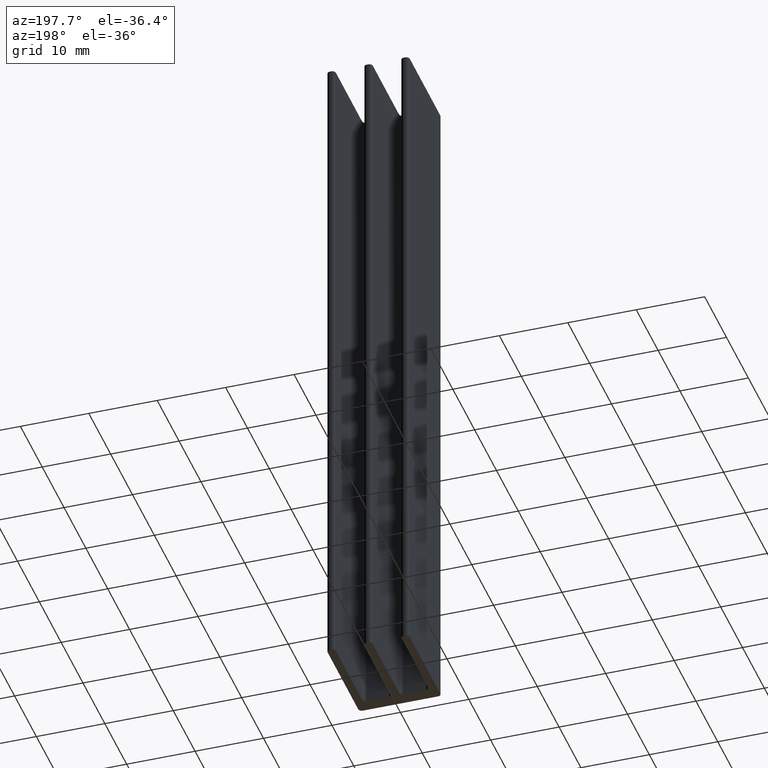
[diagram: clean part render]
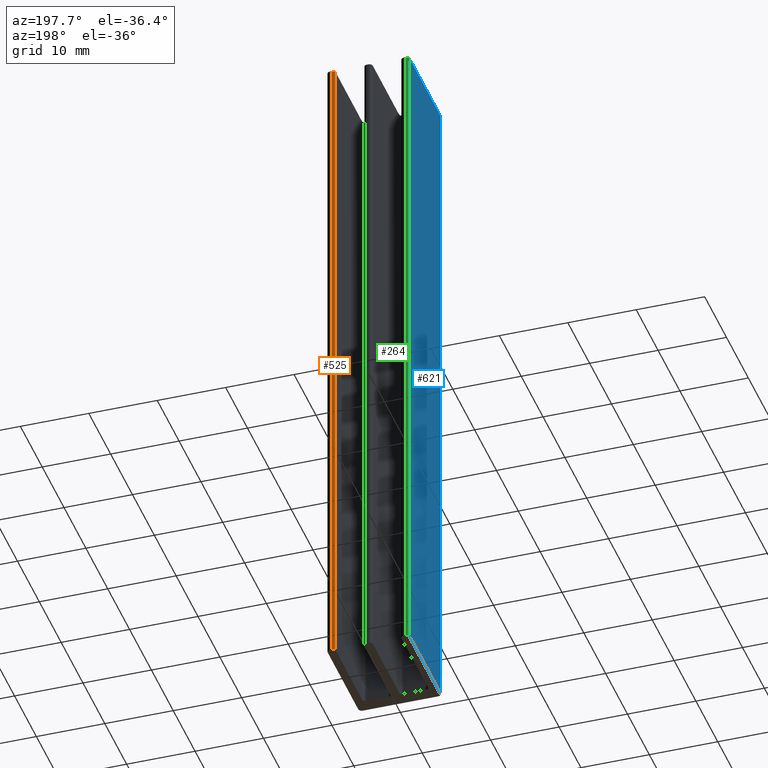
[diagram: same view with three faces highlighted in distinct colors, each labeled with its STEP entity id]
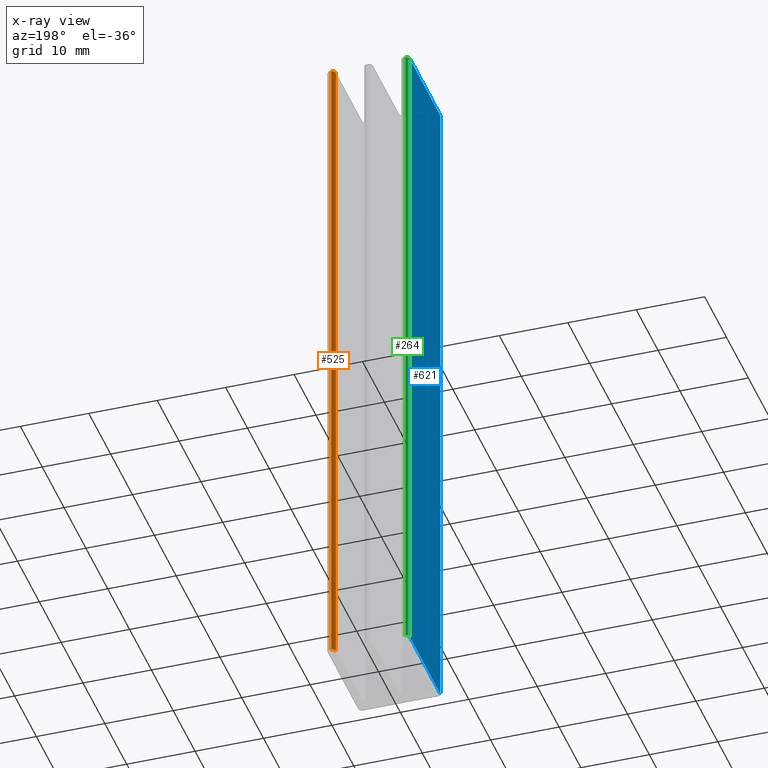
[diagram: x-ray of the same camera — body ghosted, the three highlighted faces saturated]
A machine part, auxiliary view with three faces highlighted in distinct colors.
The next image is the same camera in x-ray (body ghosted, the three faces saturated) — at least one of them is partly hidden behind the body in this view.
Their STEP definitions:

[orange] entity #525 — the highlighted cylindrical surface (edge-blend (fillet) strip) has radius 0.5 mm, axis along (-0, -0, -1).
#14 = DIRECTION ( 'NONE',  ( -0.000000000000000000, -0.000000000000000000, -1.000000000000000000 ) ) ;
#17 = VERTEX_POINT ( 'NONE', #742 ) ;
#31 = CARTESIAN_POINT ( 'NONE',  ( 5.300000000000002487, 15.00000000000000000, 0.000000000000000000 ) ) ;
#71 = DIRECTION ( 'NONE',  ( 1.000000000000000000, 0.000000000000000000, 0.000000000000000000 ) ) ;
#101 = EDGE_CURVE ( 'NONE', #541, #627, #772, .T. ) ;
#119 = CARTESIAN_POINT ( 'NONE',  ( 4.800000000000002487, 14.49999999999999822, 100.0000000000000000 ) ) ;
#121 = DIRECTION ( 'NONE',  ( 0.000000000000000000, 0.000000000000000000, 1.000000000000000000 ) ) ;
#160 = ORIENTED_EDGE ( 'NONE', *, *, #101, .T. ) ;
#176 = DIRECTION ( 'NONE',  ( -1.000000000000000000, 0.000000000000000000, 0.000000000000000000 ) ) ;
#186 = CARTESIAN_POINT ( 'NONE',  ( 5.300000000000002487, 14.49999999999999822, 0.000000000000000000 ) ) ;
#233 = AXIS2_PLACEMENT_3D ( 'NONE', #827, #121, #71 ) ;
#270 = CIRCLE ( 'NONE', #233, 0.5000000000000004441 ) ;
#291 = EDGE_CURVE ( 'NONE', #700, #627, #677, .T. ) ;
#294 = ORIENTED_EDGE ( 'NONE', *, *, #886, .T. ) ;
#322 = DIRECTION ( 'NONE',  ( -0.000000000000000000, -0.000000000000000000, -1.000000000000000000 ) ) ;
#385 = CARTESIAN_POINT ( 'NONE',  ( 4.800000000000002487, 14.49999999999999822, 0.000000000000000000 ) ) ;
#399 = DIRECTION ( 'NONE',  ( -0.000000000000000000, -0.000000000000000000, -1.000000000000000000 ) ) ;
#403 = DIRECTION ( 'NONE',  ( 1.000000000000000000, 0.000000000000000000, 0.000000000000000000 ) ) ;
#464 = VECTOR ( 'NONE', #14, 1000.000000000000000 ) ;
#484 = ORIENTED_EDGE ( 'NONE', *, *, #291, .F. ) ;
#487 = LINE ( 'NONE', #770, #464 ) ;
#525 = ADVANCED_FACE ( 'NONE', ( #847 ), #647, .T. ) ;
#532 = CARTESIAN_POINT ( 'NONE',  ( 5.300000000000002487, 14.49999999999999822, 100.0000000000000000 ) ) ;
#541 = VERTEX_POINT ( 'NONE', #31 ) ;
#597 = CARTESIAN_POINT ( 'NONE',  ( 4.800000000000002487, 14.49999999999999822, 100.0000000000000000 ) ) ;
#614 = VECTOR ( 'NONE', #399, 1000.000000000000000 ) ;
#627 = VERTEX_POINT ( 'NONE', #385 ) ;
#647 = CYLINDRICAL_SURFACE ( 'NONE', #878, 0.5000000000000004441 ) ;
#675 = DIRECTION ( 'NONE',  ( 0.000000000000000000, 0.000000000000000000, 1.000000000000000000 ) ) ;
#677 = LINE ( 'NONE', #119, #614 ) ;
#700 = VERTEX_POINT ( 'NONE', #597 ) ;
#742 = CARTESIAN_POINT ( 'NONE',  ( 5.300000000000002487, 15.00000000000000000, 100.0000000000000000 ) ) ;
#755 = EDGE_LOOP ( 'NONE', ( #160, #484, #781, #294 ) ) ;
#770 = CARTESIAN_POINT ( 'NONE',  ( 5.300000000000002487, 15.00000000000000000, 100.0000000000000000 ) ) ;
#772 = CIRCLE ( 'NONE', #894, 0.5000000000000004441 ) ;
#781 = ORIENTED_EDGE ( 'NONE', *, *, #805, .F. ) ;
#805 = EDGE_CURVE ( 'NONE', #17, #700, #270, .T. ) ;
#827 = CARTESIAN_POINT ( 'NONE',  ( 5.300000000000002487, 14.49999999999999822, 100.0000000000000000 ) ) ;
#847 = FACE_OUTER_BOUND ( 'NONE', #755, .T. ) ;
#878 = AXIS2_PLACEMENT_3D ( 'NONE', #532, #322, #176 ) ;
#886 = EDGE_CURVE ( 'NONE', #17, #541, #487, .T. ) ;
#894 = AXIS2_PLACEMENT_3D ( 'NONE', #186, #675, #403 ) ;

[blue] entity #621 — the highlighted planar face has unit normal (1, 0, 0).
#48 = LINE ( 'NONE', #407, #416 ) ;
#92 = AXIS2_PLACEMENT_3D ( 'NONE', #381, #241, #745 ) ;
#102 = VERTEX_POINT ( 'NONE', #762 ) ;
#113 = DIRECTION ( 'NONE',  ( -0.000000000000000000, -1.000000000000000000, -0.000000000000000000 ) ) ;
#166 = PLANE ( 'NONE',  #92 ) ;
#200 = VECTOR ( 'NONE', #337, 1000.000000000000000 ) ;
#217 = CARTESIAN_POINT ( 'NONE',  ( -6.000000000000001776, 14.49999999999999822, 0.000000000000000000 ) ) ;
#241 = DIRECTION ( 'NONE',  ( 1.000000000000000000, 0.000000000000000000, 0.000000000000000000 ) ) ;
#252 = EDGE_CURVE ( 'NONE', #459, #102, #812, .T. ) ;
#256 = VECTOR ( 'NONE', #741, 1000.000000000000000 ) ;
#302 = LINE ( 'NONE', #520, #256 ) ;
#305 = EDGE_LOOP ( 'NONE', ( #499, #606, #691, #769 ) ) ;
#309 = CARTESIAN_POINT ( 'NONE',  ( -6.000000000000001776, 14.49999999999999822, 100.0000000000000000 ) ) ;
#324 = DIRECTION ( 'NONE',  ( -0.000000000000000000, -0.000000000000000000, -1.000000000000000000 ) ) ;
#334 = EDGE_CURVE ( 'NONE', #599, #459, #48, .T. ) ;
#337 = DIRECTION ( 'NONE',  ( -0.000000000000000000, -1.000000000000000000, -0.000000000000000000 ) ) ;
#370 = VECTOR ( 'NONE', #113, 1000.000000000000000 ) ;
#381 = CARTESIAN_POINT ( 'NONE',  ( -6.000000000000001776, 0.5000000000000000000, 100.0000000000000000 ) ) ;
#407 = CARTESIAN_POINT ( 'NONE',  ( -6.000000000000001776, 14.49999999999999822, 100.0000000000000000 ) ) ;
#416 = VECTOR ( 'NONE', #324, 1000.000000000000000 ) ;
#459 = VERTEX_POINT ( 'NONE', #217 ) ;
#499 = ORIENTED_EDGE ( 'NONE', *, *, #252, .T. ) ;
#520 = CARTESIAN_POINT ( 'NONE',  ( -6.000000000000001776, 0.5000000000000000000, 100.0000000000000000 ) ) ;
#539 = CARTESIAN_POINT ( 'NONE',  ( -6.000000000000001776, 0.5000000000000000000, 100.0000000000000000 ) ) ;
#594 = LINE ( 'NONE', #648, #370 ) ;
#599 = VERTEX_POINT ( 'NONE', #309 ) ;
#606 = ORIENTED_EDGE ( 'NONE', *, *, #679, .F. ) ;
#621 = ADVANCED_FACE ( 'NONE', ( #811 ), #166, .F. ) ;
#648 = CARTESIAN_POINT ( 'NONE',  ( -6.000000000000001776, 0.5000000000000000000, 100.0000000000000000 ) ) ;
#679 = EDGE_CURVE ( 'NONE', #867, #102, #302, .T. ) ;
#691 = ORIENTED_EDGE ( 'NONE', *, *, #695, .F. ) ;
#695 = EDGE_CURVE ( 'NONE', #599, #867, #594, .T. ) ;
#741 = DIRECTION ( 'NONE',  ( -0.000000000000000000, -0.000000000000000000, -1.000000000000000000 ) ) ;
#745 = DIRECTION ( 'NONE',  ( 0.000000000000000000, 0.000000000000000000, -1.000000000000000000 ) ) ;
#762 = CARTESIAN_POINT ( 'NONE',  ( -6.000000000000001776, 0.5000000000000000000, 0.000000000000000000 ) ) ;
#769 = ORIENTED_EDGE ( 'NONE', *, *, #334, .T. ) ;
#811 = FACE_OUTER_BOUND ( 'NONE', #305, .T. ) ;
#812 = LINE ( 'NONE', #826, #200 ) ;
#826 = CARTESIAN_POINT ( 'NONE',  ( -6.000000000000001776, 0.5000000000000000000, 0.000000000000000000 ) ) ;
#867 = VERTEX_POINT ( 'NONE', #539 ) ;

[green] entity #264 — the highlighted cylindrical surface (edge-blend (fillet) strip) has radius 0.5 mm, axis along (-0, -0, -1).
#2 = AXIS2_PLACEMENT_3D ( 'NONE', #260, #244, #312 ) ;
#36 = ORIENTED_EDGE ( 'NONE', *, *, #334, .F. ) ;
#48 = LINE ( 'NONE', #407, #416 ) ;
#84 = VERTEX_POINT ( 'NONE', #536 ) ;
#115 = CYLINDRICAL_SURFACE ( 'NONE', #2, 0.5000000000000004441 ) ;
#130 = CARTESIAN_POINT ( 'NONE',  ( -5.500000000000001776, 14.49999999999999822, 100.0000000000000000 ) ) ;
#158 = EDGE_CURVE ( 'NONE', #175, #599, #216, .T. ) ;
#165 = AXIS2_PLACEMENT_3D ( 'NONE', #130, #754, #350 ) ;
#175 = VERTEX_POINT ( 'NONE', #339 ) ;
#182 = DIRECTION ( 'NONE',  ( -0.000000000000000000, -0.000000000000000000, -1.000000000000000000 ) ) ;
#188 = CIRCLE ( 'NONE', #521, 0.5000000000000004441 ) ;
#210 = DIRECTION ( 'NONE',  ( 0.000000000000000000, 0.000000000000000000, 1.000000000000000000 ) ) ;
#216 = CIRCLE ( 'NONE', #165, 0.5000000000000004441 ) ;
#217 = CARTESIAN_POINT ( 'NONE',  ( -6.000000000000001776, 14.49999999999999822, 0.000000000000000000 ) ) ;
#244 = DIRECTION ( 'NONE',  ( -0.000000000000000000, -0.000000000000000000, -1.000000000000000000 ) ) ;
#254 = EDGE_CURVE ( 'NONE', #175, #84, #901, .T. ) ;
#260 = CARTESIAN_POINT ( 'NONE',  ( -5.500000000000001776, 14.49999999999999822, 100.0000000000000000 ) ) ;
#264 = ADVANCED_FACE ( 'NONE', ( #383 ), #115, .T. ) ;
#309 = CARTESIAN_POINT ( 'NONE',  ( -6.000000000000001776, 14.49999999999999822, 100.0000000000000000 ) ) ;
#312 = DIRECTION ( 'NONE',  ( -1.000000000000000000, 0.000000000000000000, 0.000000000000000000 ) ) ;
#317 = EDGE_LOOP ( 'NONE', ( #632, #36, #715, #388 ) ) ;
#324 = DIRECTION ( 'NONE',  ( -0.000000000000000000, -0.000000000000000000, -1.000000000000000000 ) ) ;
#325 = CARTESIAN_POINT ( 'NONE',  ( -5.500000000000001776, 14.49999999999999822, 0.000000000000000000 ) ) ;
#334 = EDGE_CURVE ( 'NONE', #599, #459, #48, .T. ) ;
#339 = CARTESIAN_POINT ( 'NONE',  ( -5.500000000000001776, 15.00000000000000000, 100.0000000000000000 ) ) ;
#350 = DIRECTION ( 'NONE',  ( -1.000000000000000000, 0.000000000000000000, 0.000000000000000000 ) ) ;
#383 = FACE_OUTER_BOUND ( 'NONE', #317, .T. ) ;
#388 = ORIENTED_EDGE ( 'NONE', *, *, #254, .T. ) ;
#407 = CARTESIAN_POINT ( 'NONE',  ( -6.000000000000001776, 14.49999999999999822, 100.0000000000000000 ) ) ;
#416 = VECTOR ( 'NONE', #324, 1000.000000000000000 ) ;
#459 = VERTEX_POINT ( 'NONE', #217 ) ;
#521 = AXIS2_PLACEMENT_3D ( 'NONE', #325, #210, #602 ) ;
#536 = CARTESIAN_POINT ( 'NONE',  ( -5.500000000000001776, 15.00000000000000000, 0.000000000000000000 ) ) ;
#599 = VERTEX_POINT ( 'NONE', #309 ) ;
#602 = DIRECTION ( 'NONE',  ( -1.000000000000000000, 0.000000000000000000, 0.000000000000000000 ) ) ;
#632 = ORIENTED_EDGE ( 'NONE', *, *, #860, .T. ) ;
#692 = CARTESIAN_POINT ( 'NONE',  ( -5.500000000000001776, 15.00000000000000000, 100.0000000000000000 ) ) ;
#715 = ORIENTED_EDGE ( 'NONE', *, *, #158, .F. ) ;
#754 = DIRECTION ( 'NONE',  ( 0.000000000000000000, 0.000000000000000000, 1.000000000000000000 ) ) ;
#829 = VECTOR ( 'NONE', #182, 1000.000000000000000 ) ;
#860 = EDGE_CURVE ( 'NONE', #84, #459, #188, .T. ) ;
#901 = LINE ( 'NONE', #692, #829 ) ;